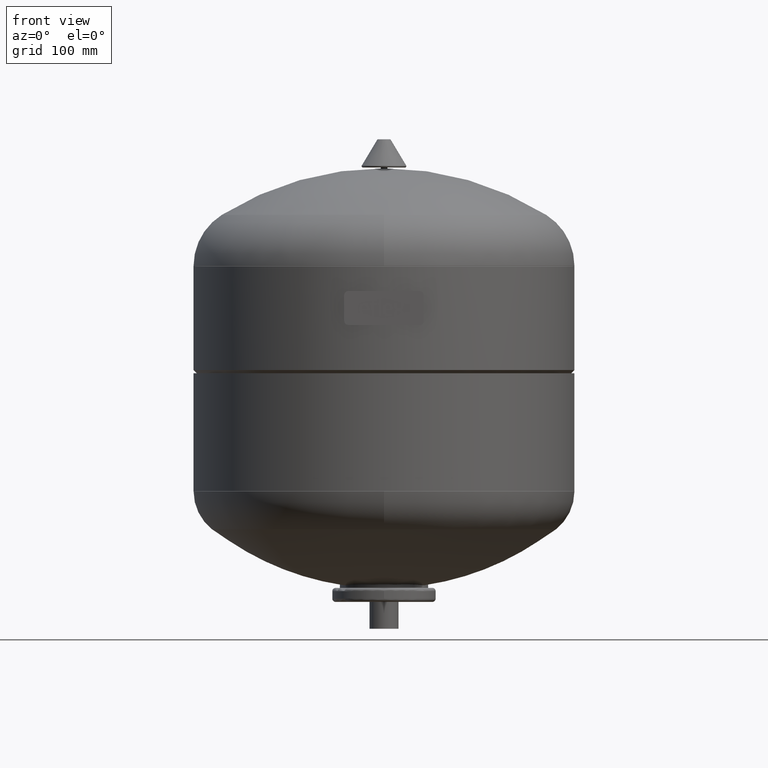
[diagram: clean part render]
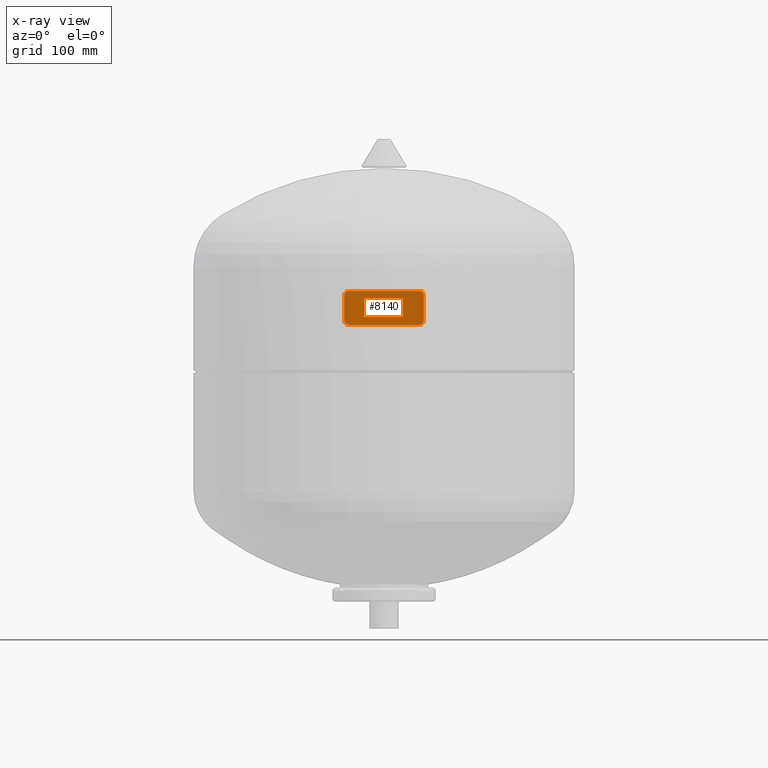
[diagram: x-ray — body ghosted, one internal face saturated and labeled with its STEP entity id]
A machine part, front view, then the same camera in x-ray: the body is ghosted and one INTERNAL B-rep face — a face not visible from any outside direction — is saturated and labeled: STEP entity #8140.
In plain terms, the highlighted planar face has unit normal (0, 1, 0).
Its self-contained STEP definition (entity closure, byte-faithful):
#8065=CARTESIAN_POINT('',(1.421085E-015,-170.19999999999999,298.15342210882784));
#8066=DIRECTION('',(0.0,1.0,0.0));
#8067=DIRECTION('',(0.0,0.0,1.0));
#8068=AXIS2_PLACEMENT_3D('',#8065,#8066,#8067);
#8069=PLANE('',#8068);
#8070=CARTESIAN_POINT('',(37.031904442286788,-170.19999999999999,286.35342210882783));
#8071=VERTEX_POINT('',#8070);
#8072=CARTESIAN_POINT('',(37.031904442286788,-170.19999999999999,309.95342210882785));
#8073=VERTEX_POINT('',#8072);
#8074=CARTESIAN_POINT('',(37.031904442286788,-170.19999999999999,286.35342210882783));
#8075=DIRECTION('',(0.0,0.0,1.0));
#8076=VECTOR('',#8075,23.600000000000023);
#8077=LINE('',#8074,#8076);
#8078=EDGE_CURVE('',#8071,#8073,#8077,.T.);
#8079=ORIENTED_EDGE('',*,*,#8078,.F.);
#8080=CARTESIAN_POINT('',(33.031904442286788,-170.19999999999999,282.35342210882783));
#8081=VERTEX_POINT('',#8080);
#8082=CARTESIAN_POINT('',(33.031904442286788,-170.19999999999999,286.35342210882783));
#8083=DIRECTION('',(-3.061516E-017,-1.0,3.061516E-017));
#8084=DIRECTION('',(0.707106781186548,-4.329637E-017,-0.707106781186548));
#8085=AXIS2_PLACEMENT_3D('',#8082,#8083,#8084);
#8086=CIRCLE('',#8085,4.0);
#8087=EDGE_CURVE('',#8081,#8071,#8086,.T.);
#8088=ORIENTED_EDGE('',*,*,#8087,.F.);
#8089=CARTESIAN_POINT('',(-33.031904442286788,-170.19999999999999,282.35342210882783));
#8090=VERTEX_POINT('',#8089);
#8091=CARTESIAN_POINT('',(-33.031904442286788,-170.19999999999999,282.35342210882783));
#8092=DIRECTION('',(1.0,0.0,0.0));
#8093=VECTOR('',#8092,66.063808884573575);
#8094=LINE('',#8091,#8093);
#8095=EDGE_CURVE('',#8090,#8081,#8094,.T.);
#8096=ORIENTED_EDGE('',*,*,#8095,.F.);
#8097=CARTESIAN_POINT('',(-37.031904442286788,-170.19999999999999,286.35342210882783));
#8098=VERTEX_POINT('',#8097);
#8099=CARTESIAN_POINT('',(-33.031904442286788,-170.19999999999999,286.35342210882783));
#8100=DIRECTION('',(3.061516E-017,-1.0,3.061516E-017));
#8101=DIRECTION('',(-0.707106781186548,-4.329637E-017,-0.707106781186548));
#8102=AXIS2_PLACEMENT_3D('',#8099,#8100,#8101);
#8103=CIRCLE('',#8102,4.0);
#8104=EDGE_CURVE('',#8098,#8090,#8103,.T.);
#8105=ORIENTED_EDGE('',*,*,#8104,.F.);
#8106=CARTESIAN_POINT('',(-37.031904442286788,-170.19999999999999,309.95342210882779));
#8107=VERTEX_POINT('',#8106);
#8108=CARTESIAN_POINT('',(-37.031904442286788,-170.19999999999999,309.95342210882779));
#8109=DIRECTION('',(0.0,0.0,-1.0));
#8110=VECTOR('',#8109,23.599999999999966);
#8111=LINE('',#8108,#8110);
#8112=EDGE_CURVE('',#8107,#8098,#8111,.T.);
#8113=ORIENTED_EDGE('',*,*,#8112,.F.);
#8114=CARTESIAN_POINT('',(-33.03190444228678,-170.19999999999999,313.95342210882779));
#8115=VERTEX_POINT('',#8114);
#8116=CARTESIAN_POINT('',(-33.03190444228678,-170.19999999999999,309.95342210882779));
#8117=DIRECTION('',(-3.061516E-017,-1.0,3.061516E-017));
#8118=DIRECTION('',(-0.707106781186547,4.329637E-017,0.707106781186548));
#8119=AXIS2_PLACEMENT_3D('',#8116,#8117,#8118);
#8120=CIRCLE('',#8119,4.000000000000006);
#8121=EDGE_CURVE('',#8115,#8107,#8120,.T.);
#8122=ORIENTED_EDGE('',*,*,#8121,.F.);
#8123=CARTESIAN_POINT('',(33.031904442286788,-170.19999999999999,313.95342210882785));
#8124=VERTEX_POINT('',#8123);
#8125=CARTESIAN_POINT('',(33.031904442286795,-170.19999999999999,313.95342210882779));
#8126=DIRECTION('',(-1.0,0.0,0.0));
#8127=VECTOR('',#8126,66.063808884573575);
#8128=LINE('',#8125,#8127);
#8129=EDGE_CURVE('',#8124,#8115,#8128,.T.);
#8130=ORIENTED_EDGE('',*,*,#8129,.F.);
#8131=CARTESIAN_POINT('',(33.031904442286788,-170.19999999999999,309.95342210882785));
#8132=DIRECTION('',(3.061516E-017,-1.0,3.061516E-017));
#8133=DIRECTION('',(0.707106781186548,4.329637E-017,0.707106781186548));
#8134=AXIS2_PLACEMENT_3D('',#8131,#8132,#8133);
#8135=CIRCLE('',#8134,4.0);
#8136=EDGE_CURVE('',#8073,#8124,#8135,.T.);
#8137=ORIENTED_EDGE('',*,*,#8136,.F.);
#8138=EDGE_LOOP('',(#8079,#8088,#8096,#8105,#8113,#8122,#8130,#8137));
#8139=FACE_OUTER_BOUND('',#8138,.T.);
#8140=ADVANCED_FACE('',(#8139),#8069,.T.);